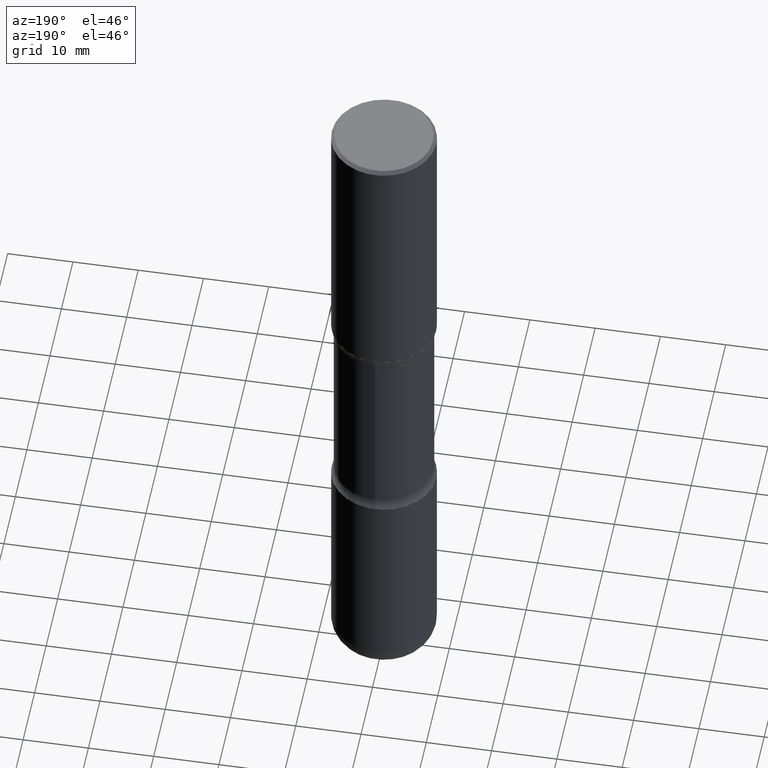
[diagram: clean part render]
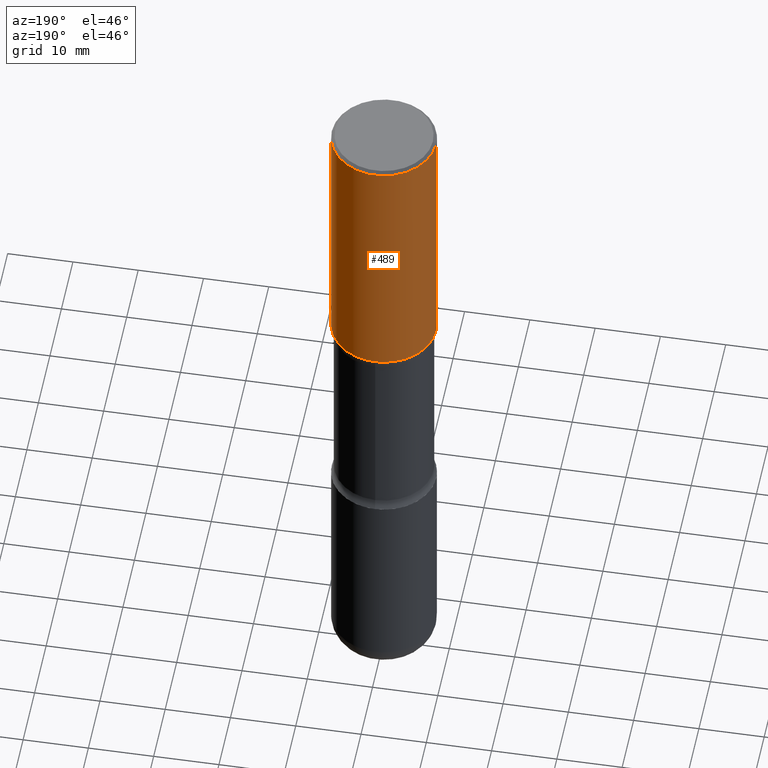
[diagram: same view with one face highlighted and labeled with its STEP entity id]
A machine part, auxiliary view. The second image highlights one B-rep face of the part: STEP entity #489.
In plain terms, the highlighted cylindrical surface (partial cylindrical patch) has radius 7.9997 mm, axis along (-0, 0, 1).
Its self-contained STEP definition (entity closure, byte-faithful):
#14 = CARTESIAN_POINT ( 'NONE',  ( -0.3149500000000001743, -6.150350556922980531E-16, -1.614200000000000745 ) ) ;
#47 = CARTESIAN_POINT ( 'NONE',  ( 0.000000000000000000, 0.000000000000000000, 0.000000000000000000 ) ) ;
#78 = DIRECTION ( 'NONE',  ( -2.445468806185136877E-29, 3.491481338843145188E-15, 1.000000000000000000 ) ) ;
#96 = FACE_OUTER_BOUND ( 'NONE', #321, .T. ) ;
#98 = CARTESIAN_POINT ( 'NONE',  ( 3.947475746944049633E-29, -5.635949177160607736E-15, -1.614200000000000745 ) ) ;
#104 = DIRECTION ( 'NONE',  ( -2.445468806185136597E-29, 3.491481338843145583E-15, 1.000000000000000000 ) ) ;
#118 = ORIENTED_EDGE ( 'NONE', *, *, #192, .T. ) ;
#137 = VECTOR ( 'NONE', #165, 39.37007874015748143 ) ;
#143 = CARTESIAN_POINT ( 'NONE',  ( 4.890937612370289799E-31, -6.982962677686315028E-17, -0.02000000000000006981 ) ) ;
#149 = VERTEX_POINT ( 'NONE', #14 ) ;
#150 = VERTEX_POINT ( 'NONE', #407 ) ;
#165 = DIRECTION ( 'NONE',  ( -2.445468806185136877E-29, 3.491481338843145188E-15, 1.000000000000000000 ) ) ;
#192 = EDGE_CURVE ( 'NONE', #150, #149, #462, .T. ) ;
#205 = CARTESIAN_POINT ( 'NONE',  ( 0.3149500000000000632, -2.199284095337290265E-15, 1.535751875536930410E-29 ) ) ;
#220 = AXIS2_PLACEMENT_3D ( 'NONE', #47, #224, #466 ) ;
#224 = DIRECTION ( 'NONE',  ( -2.445468806185136597E-29, 3.491481338843145583E-15, 1.000000000000000000 ) ) ;
#234 = DIRECTION ( 'NONE',  ( 1.000000000000000000, -6.982962677686266711E-15, 0.000000000000000000 ) ) ;
#256 = EDGE_CURVE ( 'NONE', #149, #498, #418, .T. ) ;
#263 = CARTESIAN_POINT ( 'NONE',  ( 0.3149500000000000077, -2.230543471175007450E-15, -0.02000000000000006981 ) ) ;
#270 = EDGE_CURVE ( 'NONE', #150, #405, #378, .T. ) ;
#300 = ORIENTED_EDGE ( 'NONE', *, *, #256, .T. ) ;
#310 = CIRCLE ( 'NONE', #446, 0.3149500000000000077 ) ;
#321 = EDGE_LOOP ( 'NONE', ( #118, #300, #549, #474 ) ) ;
#329 = DIRECTION ( 'NONE',  ( 1.000000000000000000, -6.982962677686265922E-15, 0.000000000000000000 ) ) ;
#378 = LINE ( 'NONE', #205, #513 ) ;
#388 = CARTESIAN_POINT ( 'NONE',  ( -0.3149500000000000077, 2.129454468560426573E-15, -0.02000000000000006981 ) ) ;
#400 = DIRECTION ( 'NONE',  ( -2.445468806185136597E-29, 3.491481338843145583E-15, 1.000000000000000000 ) ) ;
#405 = VERTEX_POINT ( 'NONE', #263 ) ;
#407 = CARTESIAN_POINT ( 'NONE',  ( 0.3149500000000001743, -7.835233272497899184E-15, -1.614200000000000745 ) ) ;
#418 = LINE ( 'NONE', #506, #137 ) ;
#446 = AXIS2_PLACEMENT_3D ( 'NONE', #143, #104, #234 ) ;
#453 = AXIS2_PLACEMENT_3D ( 'NONE', #98, #400, #329 ) ;
#462 = CIRCLE ( 'NONE', #453, 0.3149500000000001743 ) ;
#466 = DIRECTION ( 'NONE',  ( 1.000000000000000000, -6.982962677686266711E-15, 4.876176775795936353E-29 ) ) ;
#474 = ORIENTED_EDGE ( 'NONE', *, *, #270, .F. ) ;
#489 = ADVANCED_FACE ( 'NONE', ( #96 ), #520, .T. ) ;
#498 = VERTEX_POINT ( 'NONE', #388 ) ;
#506 = CARTESIAN_POINT ( 'NONE',  ( -0.3149500000000000632, 2.237854346276435985E-15, -1.549218606675782956E-29 ) ) ;
#513 = VECTOR ( 'NONE', #78, 39.37007874015748143 ) ;
#520 = CYLINDRICAL_SURFACE ( 'NONE', #220, 0.3149500000000000632 ) ;
#523 = EDGE_CURVE ( 'NONE', #405, #498, #310, .T. ) ;
#549 = ORIENTED_EDGE ( 'NONE', *, *, #523, .F. ) ;